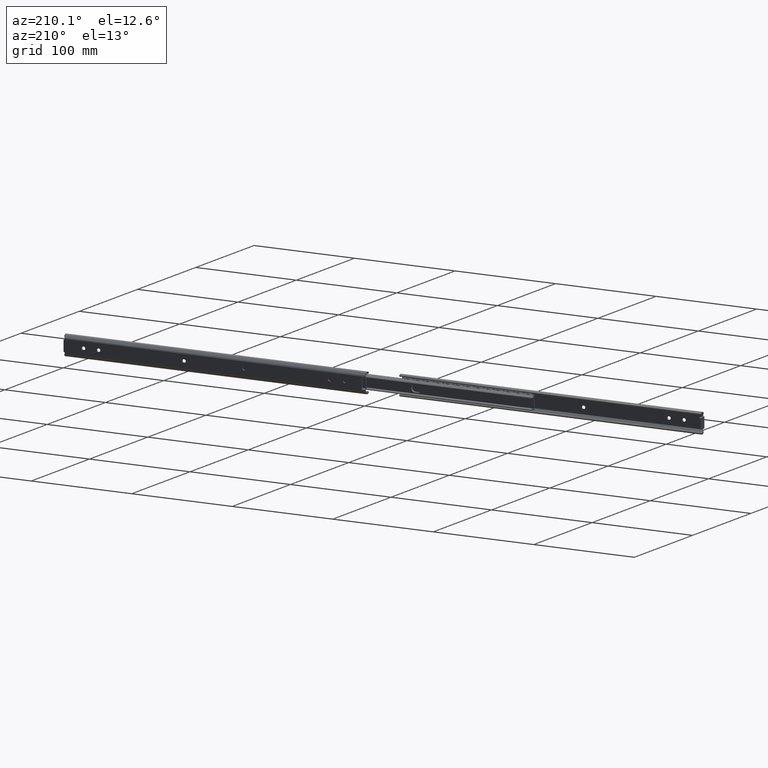
[diagram: clean part render]
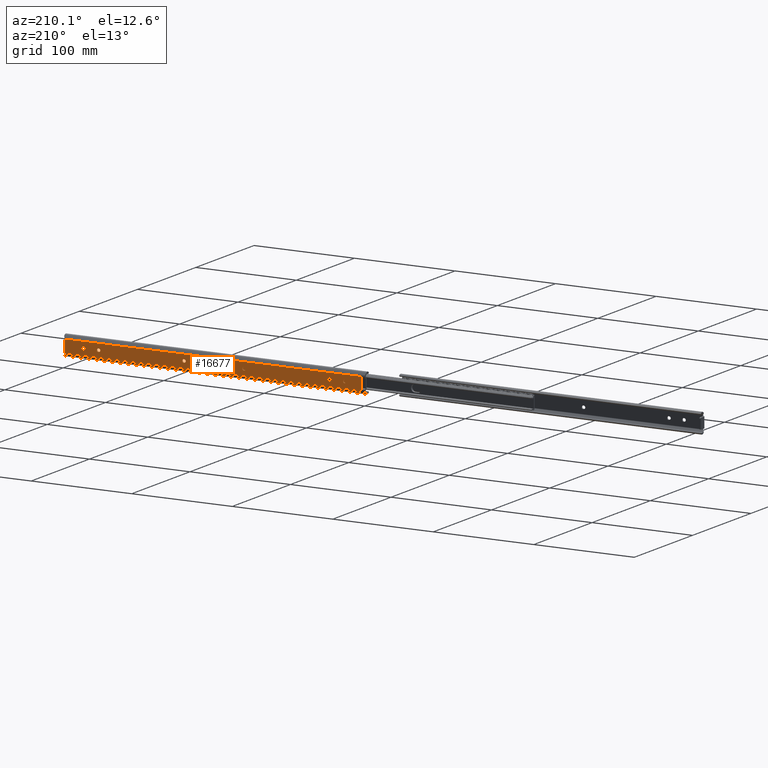
[diagram: same view with one face highlighted and labeled with its STEP entity id]
A machine part, auxiliary view. The second image highlights one B-rep face of the part: STEP entity #16677.
In plain terms, the highlighted face is a freeform B-spline surface patch.
Its self-contained STEP definition (entity closure, byte-faithful):
#13548=CARTESIAN_POINT('',(21.597015677470502,5.204170E-017,-0.097677663329138));
#13549=VERTEX_POINT('',#13548);
#13555=CARTESIAN_POINT('',(20.0,0.0,-1.600000000000000));
#13556=VERTEX_POINT('',#13555);
#13557=CARTESIAN_POINT('',(20.0,0.0,-1.600000000000000));
#13558=CARTESIAN_POINT('',(21.505129706910562,0.0,-1.600000000000000));
#13559=CARTESIAN_POINT('',(21.597015677470502,5.204170E-017,-0.097677663329138));
#13567=(BOUNDED_CURVE()B_SPLINE_CURVE(2,(#13557,#13558,#13559),.UNSPECIFIED.,.F.,.U.)B_SPLINE_CURVE_WITH_KNOTS((3,3),(0.500000000000000,0.739332962226115),.UNSPECIFIED.)CURVE()GEOMETRIC_REPRESENTATION_ITEM()RATIONAL_B_SPLINE_CURVE((1.0,0.719603993301739,0.976072041639226))REPRESENTATION_ITEM(''));
#13568=EDGE_CURVE('',#13556,#13549,#13567,.T.);
#13570=CARTESIAN_POINT('',(18.411184757819200,-2.839428E-017,0.188854775459773));
#13571=VERTEX_POINT('',#13570);
#13572=CARTESIAN_POINT('',(18.411184757819200,-2.839428E-017,0.188854775459773));
#13573=CARTESIAN_POINT('',(18.399999999999999,0.0,0.094758591452110));
#13574=CARTESIAN_POINT('',(18.399999999999999,0.0,0.0));
#13575=CARTESIAN_POINT('',(18.399999999999991,0.0,-1.600000000000000));
#13576=CARTESIAN_POINT('',(20.0,0.0,-1.600000000000000));
#13584=(BOUNDED_CURVE()B_SPLINE_CURVE(2,(#13572,#13573,#13574,#13575,#13576),.UNSPECIFIED.,.F.,.U.)B_SPLINE_CURVE_WITH_KNOTS((3,2,3),(0.229562473513738,0.250000000000000,0.500000000000000),.UNSPECIFIED.)CURVE()GEOMETRIC_REPRESENTATION_ITEM()RATIONAL_B_SPLINE_CURVE((0.956026754184150,0.976055948331414,1.0,0.707106781186548,1.0))REPRESENTATION_ITEM(''));
#13585=EDGE_CURVE('',#13571,#13556,#13584,.T.);
#13629=CARTESIAN_POINT('',(20.0,0.0,1.600000000000000));
#13630=VERTEX_POINT('',#13629);
#13631=CARTESIAN_POINT('',(20.0,0.0,1.600000000000000));
#13632=CARTESIAN_POINT('',(18.578920758493954,0.0,1.599999999999999));
#13633=CARTESIAN_POINT('',(18.411184757819203,-2.839428E-017,0.188854775459773));
#13641=(BOUNDED_CURVE()B_SPLINE_CURVE(2,(#13631,#13632,#13633),.UNSPECIFIED.,.F.,.U.)B_SPLINE_CURVE_WITH_KNOTS((3,3),(0.0,0.229562473513738),.UNSPECIFIED.)CURVE()GEOMETRIC_REPRESENTATION_ITEM()RATIONAL_B_SPLINE_CURVE((1.0,0.731050832855133,0.956026754184150))REPRESENTATION_ITEM(''));
#13642=EDGE_CURVE('',#13630,#13571,#13641,.T.);
#13644=CARTESIAN_POINT('',(21.597015677470502,5.204170E-017,-0.097677663329138));
#13645=CARTESIAN_POINT('',(21.600000000000005,0.0,-0.048884421351315));
#13646=CARTESIAN_POINT('',(21.600000000000001,0.0,0.0));
#13647=CARTESIAN_POINT('',(21.600000000000005,0.0,1.600000000000000));
#13648=CARTESIAN_POINT('',(20.0,0.0,1.600000000000000));
#13656=(BOUNDED_CURVE()B_SPLINE_CURVE(2,(#13644,#13645,#13646,#13647,#13648),.UNSPECIFIED.,.F.,.U.)B_SPLINE_CURVE_WITH_KNOTS((3,2,3),(0.739332962226115,0.750000000000000,1.0),.UNSPECIFIED.)CURVE()GEOMETRIC_REPRESENTATION_ITEM()RATIONAL_B_SPLINE_CURVE((0.976072041639224,0.987502787884808,1.0,0.707106781186548,1.0))REPRESENTATION_ITEM(''));
#13657=EDGE_CURVE('',#13549,#13630,#13656,.T.);
#13692=CARTESIAN_POINT('',(35.299999999999997,8.526513E-014,-1.600000000000080));
#13693=VERTEX_POINT('',#13692);
#13699=CARTESIAN_POINT('',(34.700000000000003,0.0,-1.600000000000000));
#13700=VERTEX_POINT('',#13699);
#13701=CARTESIAN_POINT('',(34.700000000000003,0.0,-1.600000000000000));
#13702=CARTESIAN_POINT('',(35.299999999999997,8.526513E-014,-1.600000000000080));
#13703=QUASI_UNIFORM_CURVE('',1,(#13701,#13702),.UNSPECIFIED.,.F.,.U.);
#13704=EDGE_CURVE('',#13700,#13693,#13703,.T.);
#13750=CARTESIAN_POINT('',(34.700000000000003,0.0,1.600000000000025));
#13751=VERTEX_POINT('',#13750);
#13752=CARTESIAN_POINT('',(34.700000000000003,0.0,1.600000000000000));
#13753=CARTESIAN_POINT('',(33.100000000000009,0.0,1.600000000000000));
#13754=CARTESIAN_POINT('',(33.100000000000001,0.0,0.0));
#13755=CARTESIAN_POINT('',(33.100000000000009,0.0,-1.600000000000000));
#13756=CARTESIAN_POINT('',(34.700000000000003,0.0,-1.600000000000000));
#13764=(BOUNDED_CURVE()B_SPLINE_CURVE(2,(#13752,#13753,#13754,#13755,#13756),.UNSPECIFIED.,.F.,.U.)B_SPLINE_CURVE_WITH_KNOTS((3,2,3),(0.0,0.500000000000000,1.0),.UNSPECIFIED.)CURVE()GEOMETRIC_REPRESENTATION_ITEM()RATIONAL_B_SPLINE_CURVE((1.0,0.707106781186548,1.0,0.707106781186548,1.0))REPRESENTATION_ITEM(''));
#13765=EDGE_CURVE('',#13751,#13700,#13764,.T.);
#13788=CARTESIAN_POINT('',(35.299999999999997,0.0,1.600000000000025));
#13789=VERTEX_POINT('',#13788);
#13790=CARTESIAN_POINT('',(35.299999999999997,0.0,1.600000000000025));
#13791=CARTESIAN_POINT('',(34.700000000000003,0.0,1.600000000000025));
#13792=QUASI_UNIFORM_CURVE('',1,(#13790,#13791),.UNSPECIFIED.,.F.,.U.);
#13793=EDGE_CURVE('',#13789,#13751,#13792,.T.);
#13837=CARTESIAN_POINT('',(35.299999999999997,8.526513E-014,-1.600000000000080));
#13838=CARTESIAN_POINT('',(36.900000000000006,0.0,-1.600000000000000));
#13839=CARTESIAN_POINT('',(36.899999999999999,0.0,0.0));
#13840=CARTESIAN_POINT('',(36.900000000000006,0.0,1.600000000000000));
#13841=CARTESIAN_POINT('',(35.299999999999997,0.0,1.600000000000000));
#13849=(BOUNDED_CURVE()B_SPLINE_CURVE(2,(#13837,#13838,#13839,#13840,#13841),.UNSPECIFIED.,.F.,.U.)B_SPLINE_CURVE_WITH_KNOTS((3,2,3),(0.0,0.500000000000000,1.0),.UNSPECIFIED.)CURVE()GEOMETRIC_REPRESENTATION_ITEM()RATIONAL_B_SPLINE_CURVE((1.0,0.707106781186548,1.0,0.707106781186548,1.0))REPRESENTATION_ITEM(''));
#13850=EDGE_CURVE('',#13693,#13789,#13849,.T.);
#13870=CARTESIAN_POINT('',(120.300000000000000,8.526513E-014,-1.600000000000080));
#13871=VERTEX_POINT('',#13870);
#13877=CARTESIAN_POINT('',(119.700000000000000,0.0,-1.600000000000000));
#13878=VERTEX_POINT('',#13877);
#13879=CARTESIAN_POINT('',(119.700000000000000,0.0,-1.600000000000000));
#13880=CARTESIAN_POINT('',(120.300000000000000,8.526513E-014,-1.600000000000080));
#13881=QUASI_UNIFORM_CURVE('',1,(#13879,#13880),.UNSPECIFIED.,.F.,.U.);
#13882=EDGE_CURVE('',#13878,#13871,#13881,.T.);
#13928=CARTESIAN_POINT('',(119.700000000000000,0.0,1.600000000000025));
#13929=VERTEX_POINT('',#13928);
#13930=CARTESIAN_POINT('',(119.700000000000000,0.0,1.600000000000000));
#13931=CARTESIAN_POINT('',(118.099999999999980,0.0,1.600000000000000));
#13932=CARTESIAN_POINT('',(118.099999999999990,0.0,0.0));
#13933=CARTESIAN_POINT('',(118.099999999999980,0.0,-1.600000000000000));
#13934=CARTESIAN_POINT('',(119.700000000000000,0.0,-1.600000000000000));
#13942=(BOUNDED_CURVE()B_SPLINE_CURVE(2,(#13930,#13931,#13932,#13933,#13934),.UNSPECIFIED.,.F.,.U.)B_SPLINE_CURVE_WITH_KNOTS((3,2,3),(0.0,0.500000000000000,1.0),.UNSPECIFIED.)CURVE()GEOMETRIC_REPRESENTATION_ITEM()RATIONAL_B_SPLINE_CURVE((1.0,0.707106781186548,1.0,0.707106781186548,1.0))REPRESENTATION_ITEM(''));
#13943=EDGE_CURVE('',#13929,#13878,#13942,.T.);
#13966=CARTESIAN_POINT('',(120.300000000000000,0.0,1.600000000000025));
#13967=VERTEX_POINT('',#13966);
#13968=CARTESIAN_POINT('',(120.300000000000000,0.0,1.600000000000025));
#13969=CARTESIAN_POINT('',(119.700000000000000,0.0,1.600000000000025));
#13970=QUASI_UNIFORM_CURVE('',1,(#13968,#13969),.UNSPECIFIED.,.F.,.U.);
#13971=EDGE_CURVE('',#13967,#13929,#13970,.T.);
#14015=CARTESIAN_POINT('',(120.300000000000000,0.0,-1.600000000000000));
#14016=CARTESIAN_POINT('',(121.900000000000010,0.0,-1.600000000000000));
#14017=CARTESIAN_POINT('',(121.900000000000010,0.0,0.0));
#14018=CARTESIAN_POINT('',(121.900000000000010,0.0,1.600000000000000));
#14019=CARTESIAN_POINT('',(120.300000000000000,0.0,1.600000000000000));
#14027=(BOUNDED_CURVE()B_SPLINE_CURVE(2,(#14015,#14016,#14017,#14018,#14019),.UNSPECIFIED.,.F.,.U.)B_SPLINE_CURVE_WITH_KNOTS((3,2,3),(0.0,0.500000000000000,1.0),.UNSPECIFIED.)CURVE()GEOMETRIC_REPRESENTATION_ITEM()RATIONAL_B_SPLINE_CURVE((1.0,0.707106781186548,1.0,0.707106781186548,1.0))REPRESENTATION_ITEM(''));
#14028=EDGE_CURVE('',#13871,#13967,#14027,.T.);
#14048=CARTESIAN_POINT('',(180.300000000000010,8.526513E-014,-1.600000000000000));
#14049=VERTEX_POINT('',#14048);
#14055=CARTESIAN_POINT('',(179.699999999999990,0.0,-1.600000000000000));
#14056=VERTEX_POINT('',#14055);
#14057=CARTESIAN_POINT('',(179.699999999999990,0.0,-1.600000000000000));
#14058=CARTESIAN_POINT('',(180.300000000000010,8.526513E-014,-1.600000000000000));
#14059=QUASI_UNIFORM_CURVE('',1,(#14057,#14058),.UNSPECIFIED.,.F.,.U.);
#14060=EDGE_CURVE('',#14056,#14049,#14059,.T.);
#14106=CARTESIAN_POINT('',(179.699999999999990,0.0,1.599999999999910));
#14107=VERTEX_POINT('',#14106);
#14108=CARTESIAN_POINT('',(179.699999999999990,0.0,1.600000000000000));
#14109=CARTESIAN_POINT('',(178.099999999999970,0.0,1.600000000000000));
#14110=CARTESIAN_POINT('',(178.099999999999990,0.0,0.0));
#14111=CARTESIAN_POINT('',(178.099999999999970,0.0,-1.600000000000000));
#14112=CARTESIAN_POINT('',(179.699999999999990,0.0,-1.600000000000000));
#14120=(BOUNDED_CURVE()B_SPLINE_CURVE(2,(#14108,#14109,#14110,#14111,#14112),.UNSPECIFIED.,.F.,.U.)B_SPLINE_CURVE_WITH_KNOTS((3,2,3),(0.0,0.500000000000000,1.0),.UNSPECIFIED.)CURVE()GEOMETRIC_REPRESENTATION_ITEM()RATIONAL_B_SPLINE_CURVE((1.0,0.707106781186548,1.0,0.707106781186548,1.0))REPRESENTATION_ITEM(''));
#14121=EDGE_CURVE('',#14107,#14056,#14120,.T.);
#14144=CARTESIAN_POINT('',(180.300000000000010,0.0,1.599999999999910));
#14145=VERTEX_POINT('',#14144);
#14146=CARTESIAN_POINT('',(180.300000000000010,0.0,1.599999999999910));
#14147=CARTESIAN_POINT('',(179.699999999999990,0.0,1.599999999999910));
#14148=QUASI_UNIFORM_CURVE('',1,(#14146,#14147),.UNSPECIFIED.,.F.,.U.);
#14149=EDGE_CURVE('',#14145,#14107,#14148,.T.);
#14193=CARTESIAN_POINT('',(180.300000000000010,0.0,-1.600000000000000));
#14194=CARTESIAN_POINT('',(181.899999999999980,0.0,-1.600000000000000));
#14195=CARTESIAN_POINT('',(181.900000000000010,0.0,0.0));
#14196=CARTESIAN_POINT('',(181.899999999999980,0.0,1.600000000000000));
#14197=CARTESIAN_POINT('',(180.300000000000010,0.0,1.600000000000000));
#14205=(BOUNDED_CURVE()B_SPLINE_CURVE(2,(#14193,#14194,#14195,#14196,#14197),.UNSPECIFIED.,.F.,.U.)B_SPLINE_CURVE_WITH_KNOTS((3,2,3),(0.0,0.500000000000000,1.0),.UNSPECIFIED.)CURVE()GEOMETRIC_REPRESENTATION_ITEM()RATIONAL_B_SPLINE_CURVE((1.0,0.707106781186548,1.0,0.707106781186548,1.0))REPRESENTATION_ITEM(''));
#14206=EDGE_CURVE('',#14049,#14145,#14205,.T.);
#14226=CARTESIAN_POINT('',(265.300000000000010,8.526513E-014,-1.600000000000000));
#14227=VERTEX_POINT('',#14226);
#14233=CARTESIAN_POINT('',(264.699999999999990,0.0,-1.600000000000025));
#14234=VERTEX_POINT('',#14233);
#14235=CARTESIAN_POINT('',(264.699999999999990,0.0,-1.600000000000025));
#14236=CARTESIAN_POINT('',(265.300000000000010,8.526513E-014,-1.600000000000000));
#14237=QUASI_UNIFORM_CURVE('',1,(#14235,#14236),.UNSPECIFIED.,.F.,.U.);
#14238=EDGE_CURVE('',#14234,#14227,#14237,.T.);
#14284=CARTESIAN_POINT('',(264.699999999999990,0.0,1.599999999999910));
#14285=VERTEX_POINT('',#14284);
#14286=CARTESIAN_POINT('',(264.699999999999990,0.0,1.600000000000025));
#14287=CARTESIAN_POINT('',(263.099999999999970,0.0,1.600000000000026));
#14288=CARTESIAN_POINT('',(263.100000000000020,0.0,0.0));
#14289=CARTESIAN_POINT('',(263.099999999999970,0.0,-1.600000000000026));
#14290=CARTESIAN_POINT('',(264.699999999999990,0.0,-1.600000000000025));
#14298=(BOUNDED_CURVE()B_SPLINE_CURVE(2,(#14286,#14287,#14288,#14289,#14290),.UNSPECIFIED.,.F.,.U.)B_SPLINE_CURVE_WITH_KNOTS((3,2,3),(0.0,0.500000000000000,1.0),.UNSPECIFIED.)CURVE()GEOMETRIC_REPRESENTATION_ITEM()RATIONAL_B_SPLINE_CURVE((1.0,0.707106781186547,1.0,0.707106781186547,1.0))REPRESENTATION_ITEM(''));
#14299=EDGE_CURVE('',#14285,#14234,#14298,.T.);
#14322=CARTESIAN_POINT('',(265.300000000000010,0.0,1.599999999999910));
#14323=VERTEX_POINT('',#14322);
#14324=CARTESIAN_POINT('',(265.300000000000010,0.0,1.599999999999910));
#14325=CARTESIAN_POINT('',(264.699999999999990,0.0,1.599999999999910));
#14326=QUASI_UNIFORM_CURVE('',1,(#14324,#14325),.UNSPECIFIED.,.F.,.U.);
#14327=EDGE_CURVE('',#14323,#14285,#14326,.T.);
#14371=CARTESIAN_POINT('',(265.300000000000010,0.0,-1.600000000000025));
#14372=CARTESIAN_POINT('',(266.899999999999980,0.0,-1.600000000000026));
#14373=CARTESIAN_POINT('',(266.899999999999980,0.0,0.0));
#14374=CARTESIAN_POINT('',(266.899999999999980,0.0,1.600000000000026));
#14375=CARTESIAN_POINT('',(265.300000000000010,0.0,1.600000000000025));
#14383=(BOUNDED_CURVE()B_SPLINE_CURVE(2,(#14371,#14372,#14373,#14374,#14375),.UNSPECIFIED.,.F.,.U.)B_SPLINE_CURVE_WITH_KNOTS((3,2,3),(0.0,0.500000000000000,1.0),.UNSPECIFIED.)CURVE()GEOMETRIC_REPRESENTATION_ITEM()RATIONAL_B_SPLINE_CURVE((1.0,0.707106781186547,1.0,0.707106781186547,1.0))REPRESENTATION_ITEM(''));
#14384=EDGE_CURVE('',#14227,#14323,#14383,.T.);
#14404=CARTESIAN_POINT('',(280.300000000000010,8.526513E-014,-1.600000000000000));
#14405=VERTEX_POINT('',#14404);
#14411=CARTESIAN_POINT('',(279.699999999999990,0.0,-1.600000000000025));
#14412=VERTEX_POINT('',#14411);
#14413=CARTESIAN_POINT('',(279.699999999999990,0.0,-1.600000000000025));
#14414=CARTESIAN_POINT('',(280.300000000000010,8.526513E-014,-1.600000000000000));
#14415=QUASI_UNIFORM_CURVE('',1,(#14413,#14414),.UNSPECIFIED.,.F.,.U.);
#14416=EDGE_CURVE('',#14412,#14405,#14415,.T.);
#14462=CARTESIAN_POINT('',(279.699999999999990,0.0,1.599999999999910));
#14463=VERTEX_POINT('',#14462);
#14464=CARTESIAN_POINT('',(279.699999999999990,0.0,1.600000000000025));
#14465=CARTESIAN_POINT('',(278.099999999999910,0.0,1.600000000000026));
#14466=CARTESIAN_POINT('',(278.100000000000020,0.0,0.0));
#14467=CARTESIAN_POINT('',(278.099999999999910,0.0,-1.600000000000026));
#14468=CARTESIAN_POINT('',(279.699999999999990,0.0,-1.600000000000025));
#14476=(BOUNDED_CURVE()B_SPLINE_CURVE(2,(#14464,#14465,#14466,#14467,#14468),.UNSPECIFIED.,.F.,.U.)B_SPLINE_CURVE_WITH_KNOTS((3,2,3),(0.0,0.500000000000000,1.0),.UNSPECIFIED.)CURVE()GEOMETRIC_REPRESENTATION_ITEM()RATIONAL_B_SPLINE_CURVE((1.0,0.707106781186547,1.0,0.707106781186547,1.0))REPRESENTATION_ITEM(''));
#14477=EDGE_CURVE('',#14463,#14412,#14476,.T.);
#14500=CARTESIAN_POINT('',(280.300000000000010,0.0,1.599999999999910));
#14501=VERTEX_POINT('',#14500);
#14502=CARTESIAN_POINT('',(280.300000000000010,0.0,1.599999999999910));
#14503=CARTESIAN_POINT('',(279.699999999999990,0.0,1.599999999999910));
#14504=QUASI_UNIFORM_CURVE('',1,(#14502,#14503),.UNSPECIFIED.,.F.,.U.);
#14505=EDGE_CURVE('',#14501,#14463,#14504,.T.);
#14549=CARTESIAN_POINT('',(280.300000000000010,0.0,-1.600000000000025));
#14550=CARTESIAN_POINT('',(281.900000000000090,0.0,-1.600000000000026));
#14551=CARTESIAN_POINT('',(281.899999999999980,0.0,0.0));
#14552=CARTESIAN_POINT('',(281.900000000000090,0.0,1.600000000000026));
#14553=CARTESIAN_POINT('',(280.300000000000010,0.0,1.600000000000025));
#14561=(BOUNDED_CURVE()B_SPLINE_CURVE(2,(#14549,#14550,#14551,#14552,#14553),.UNSPECIFIED.,.F.,.U.)B_SPLINE_CURVE_WITH_KNOTS((3,2,3),(0.0,0.500000000000000,1.0),.UNSPECIFIED.)CURVE()GEOMETRIC_REPRESENTATION_ITEM()RATIONAL_B_SPLINE_CURVE((1.0,0.707106781186547,1.0,0.707106781186547,1.0))REPRESENTATION_ITEM(''));
#14562=EDGE_CURVE('',#14405,#14501,#14561,.T.);
#14621=CARTESIAN_POINT('',(299.0,0.0,-5.383484861008910));
#14622=VERTEX_POINT('',#14621);
#14634=CARTESIAN_POINT('',(299.0,0.0,5.383484861008820));
#14635=VERTEX_POINT('',#14634);
#14636=CARTESIAN_POINT('',(299.0,0.0,5.383484861008820));
#14637=CARTESIAN_POINT('',(299.0,0.0,-5.383484861008910));
#14638=QUASI_UNIFORM_CURVE('',1,(#14636,#14637),.UNSPECIFIED.,.F.,.U.);
#14639=EDGE_CURVE('',#14635,#14622,#14638,.T.);
#15045=CARTESIAN_POINT('',(298.424053688014000,0.0,6.081989000000000));
#15046=VERTEX_POINT('',#15045);
#15047=CARTESIAN_POINT('',(298.424053688014110,0.0,6.081989000000008));
#15048=CARTESIAN_POINT('',(298.534727763389750,0.0,5.586546312725798));
#15049=CARTESIAN_POINT('',(299.0,0.0,5.383484861008834));
#15057=(BOUNDED_CURVE()B_SPLINE_CURVE(2,(#15047,#15048,#15049),.UNSPECIFIED.,.F.,.U.)CURVE()GEOMETRIC_REPRESENTATION_ITEM()QUASI_UNIFORM_CURVE()RATIONAL_B_SPLINE_CURVE((1.0,0.891680690258847,1.0))REPRESENTATION_ITEM(''));
#15058=EDGE_CURVE('',#15046,#14635,#15057,.T.);
#15259=CARTESIAN_POINT('',(298.424053688014000,0.0,-6.081989000000000));
#15260=VERTEX_POINT('',#15259);
#15261=CARTESIAN_POINT('',(299.0,0.0,-5.383484861008933));
#15262=CARTESIAN_POINT('',(298.534727763389750,0.0,-5.586546312725871));
#15263=CARTESIAN_POINT('',(298.424053688014110,0.0,-6.081989000000013));
#15271=(BOUNDED_CURVE()B_SPLINE_CURVE(2,(#15261,#15262,#15263),.UNSPECIFIED.,.F.,.U.)CURVE()GEOMETRIC_REPRESENTATION_ITEM()QUASI_UNIFORM_CURVE()RATIONAL_B_SPLINE_CURVE((1.0,0.891680690258868,1.0))REPRESENTATION_ITEM(''));
#15272=EDGE_CURVE('',#14622,#15260,#15271,.T.);
#16590=CARTESIAN_POINT('',(3.100000000000000,7.958044E-014,-6.081989000000000));
#16591=VERTEX_POINT('',#16590);
#16592=CARTESIAN_POINT('',(298.424053688014000,0.0,-6.081989000000000));
#16593=CARTESIAN_POINT('',(3.100000000000000,7.958044E-014,-6.081989000000000));
#16594=QUASI_UNIFORM_CURVE('',1,(#16592,#16593),.UNSPECIFIED.,.F.,.U.);
#16595=EDGE_CURVE('',#15260,#16591,#16594,.T.);
#16618=CARTESIAN_POINT('',(-11.680204426488400,8.526513E-014,-6.689579519878856));
#16619=CARTESIAN_POINT('',(-11.680204426488400,8.526513E-014,6.689579084861103));
#16620=CARTESIAN_POINT('',(313.780212363144930,8.526513E-014,-6.689579519878856));
#16621=CARTESIAN_POINT('',(313.780212363144930,8.526513E-014,6.689579084861103));
#16622=B_SPLINE_SURFACE_WITH_KNOTS('',1,1,((#16618,#16620),(#16619,#16621)),.UNSPECIFIED.,.F.,.F.,.U.,(2,2),(2,2),(0.0,13.379158604739960),(0.0,325.460416789633310),.UNSPECIFIED.);
#16623=ORIENTED_EDGE('',*,*,#15058,.T.);
#16624=ORIENTED_EDGE('',*,*,#14639,.T.);
#16625=ORIENTED_EDGE('',*,*,#15272,.T.);
#16626=ORIENTED_EDGE('',*,*,#16595,.T.);
#16627=CARTESIAN_POINT('',(3.100000000000000,-9.063930E-014,6.081989000000000));
#16628=VERTEX_POINT('',#16627);
#16629=CARTESIAN_POINT('',(3.100000000000000,-9.063930E-014,6.081989000000000));
#16630=CARTESIAN_POINT('',(3.100000000000000,7.958044E-014,-6.081989000000000));
#16631=QUASI_UNIFORM_CURVE('',1,(#16629,#16630),.UNSPECIFIED.,.F.,.U.);
#16632=EDGE_CURVE('',#16628,#16591,#16631,.T.);
#16633=ORIENTED_EDGE('',*,*,#16632,.F.);
#16634=CARTESIAN_POINT('',(298.424053688014000,0.0,6.081989000000000));
#16635=CARTESIAN_POINT('',(3.100000000000000,-9.063930E-014,6.081989000000000));
#16636=QUASI_UNIFORM_CURVE('',1,(#16634,#16635),.UNSPECIFIED.,.F.,.U.);
#16637=EDGE_CURVE('',#15046,#16628,#16636,.T.);
#16638=ORIENTED_EDGE('',*,*,#16637,.F.);
#16639=EDGE_LOOP('',(#16623,#16624,#16625,#16626,#16633,#16638));
#16640=FACE_OUTER_BOUND('',#16639,.T.);
#16641=ORIENTED_EDGE('',*,*,#13850,.T.);
#16642=ORIENTED_EDGE('',*,*,#13793,.T.);
#16643=ORIENTED_EDGE('',*,*,#13765,.T.);
#16644=ORIENTED_EDGE('',*,*,#13704,.T.);
#16645=EDGE_LOOP('',(#16641,#16642,#16643,#16644));
#16646=FACE_BOUND('',#16645,.T.);
#16647=ORIENTED_EDGE('',*,*,#14028,.T.);
#16648=ORIENTED_EDGE('',*,*,#13971,.T.);
#16649=ORIENTED_EDGE('',*,*,#13943,.T.);
#16650=ORIENTED_EDGE('',*,*,#13882,.T.);
#16651=EDGE_LOOP('',(#16647,#16648,#16649,#16650));
#16652=FACE_BOUND('',#16651,.T.);
#16653=ORIENTED_EDGE('',*,*,#14206,.T.);
#16654=ORIENTED_EDGE('',*,*,#14149,.T.);
#16655=ORIENTED_EDGE('',*,*,#14121,.T.);
#16656=ORIENTED_EDGE('',*,*,#14060,.T.);
#16657=EDGE_LOOP('',(#16653,#16654,#16655,#16656));
#16658=FACE_BOUND('',#16657,.T.);
#16659=ORIENTED_EDGE('',*,*,#14384,.T.);
#16660=ORIENTED_EDGE('',*,*,#14327,.T.);
#16661=ORIENTED_EDGE('',*,*,#14299,.T.);
#16662=ORIENTED_EDGE('',*,*,#14238,.T.);
#16663=EDGE_LOOP('',(#16659,#16660,#16661,#16662));
#16664=FACE_BOUND('',#16663,.T.);
#16665=ORIENTED_EDGE('',*,*,#14562,.T.);
#16666=ORIENTED_EDGE('',*,*,#14505,.T.);
#16667=ORIENTED_EDGE('',*,*,#14477,.T.);
#16668=ORIENTED_EDGE('',*,*,#14416,.T.);
#16669=EDGE_LOOP('',(#16665,#16666,#16667,#16668));
#16670=FACE_BOUND('',#16669,.T.);
#16671=ORIENTED_EDGE('',*,*,#13568,.T.);
#16672=ORIENTED_EDGE('',*,*,#13657,.T.);
#16673=ORIENTED_EDGE('',*,*,#13642,.T.);
#16674=ORIENTED_EDGE('',*,*,#13585,.T.);
#16675=EDGE_LOOP('',(#16671,#16672,#16673,#16674));
#16676=FACE_BOUND('',#16675,.T.);
#16677=ADVANCED_FACE('',(#16640,#16646,#16652,#16658,#16664,#16670,#16676),#16622,.T.);